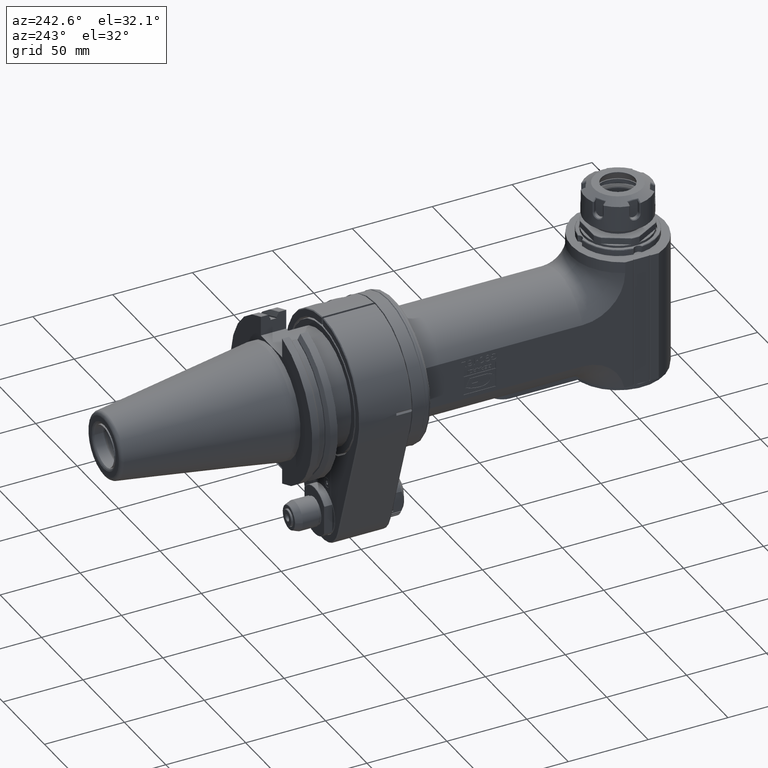
[diagram: clean part render]
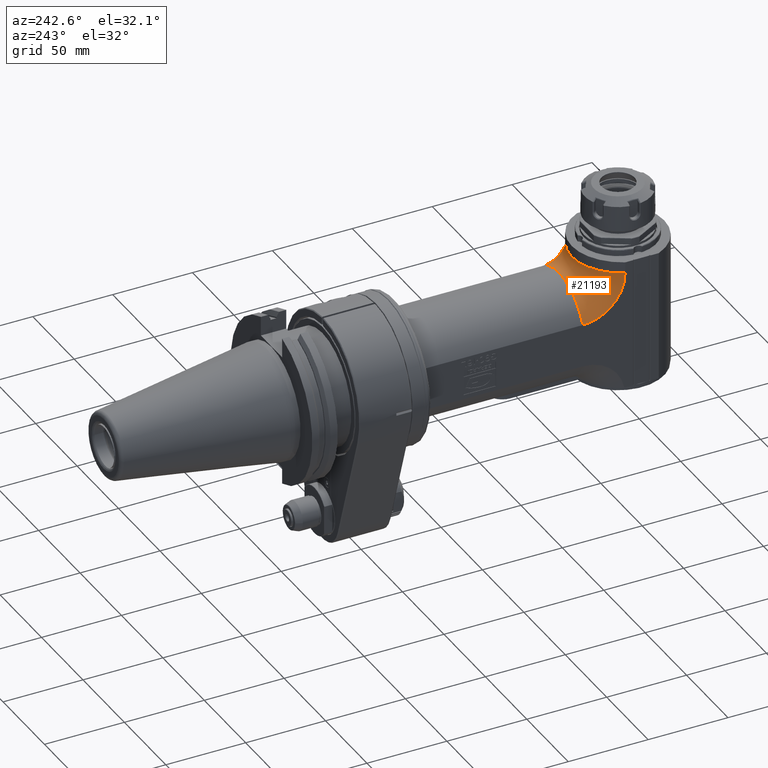
[diagram: same view with one face highlighted and labeled with its STEP entity id]
A machine part, auxiliary view. The second image highlights one B-rep face of the part: STEP entity #21193.
In plain terms, the highlighted toroidal blend (fillet) surface has major radius 40 mm and minor (blend) radius 32 mm.
Its self-contained STEP definition (entity closure, byte-faithful):
#370=TOROIDAL_SURFACE('',#22581,1.5748031496063,1.25984251968504);
#1620=FACE_OUTER_BOUND('',#2873,.T.);
#2873=EDGE_LOOP('',(#15323,#15324,#15325,#15326));
#4119=CIRCLE('',#22329,1.04221459612323);
#4219=CIRCLE('',#22553,1.04221459612323);
#4231=CIRCLE('',#22580,1.25984251968504);
#4232=CIRCLE('',#22582,1.25984251968504);
#9103=VERTEX_POINT('',#30923);
#9104=VERTEX_POINT('',#30925);
#9480=VERTEX_POINT('',#32125);
#9481=VERTEX_POINT('',#32127);
#11229=EDGE_CURVE('',#9104,#9103,#4119,.T.);
#11708=EDGE_CURVE('',#9480,#9481,#4219,.T.);
#11747=EDGE_CURVE('',#9103,#9481,#4231,.T.);
#11748=EDGE_CURVE('',#9104,#9480,#4232,.T.);
#15323=ORIENTED_EDGE('',*,*,#11748,.F.);
#15324=ORIENTED_EDGE('',*,*,#11229,.T.);
#15325=ORIENTED_EDGE('',*,*,#11747,.T.);
#15326=ORIENTED_EDGE('',*,*,#11708,.F.);
#21193=ADVANCED_FACE('',(#1620),#370,.T.);
#22329=AXIS2_PLACEMENT_3D('',#30926,#24299,#24300);
#22553=AXIS2_PLACEMENT_3D('',#32128,#25124,#25125);
#22580=AXIS2_PLACEMENT_3D('',#32205,#25205,#25206);
#22581=AXIS2_PLACEMENT_3D('',#32206,#25207,#25208);
#22582=AXIS2_PLACEMENT_3D('',#32207,#25209,#25210);
#24299=DIRECTION('center_axis',(-1.,0.,0.));
#24300=DIRECTION('ref_axis',(0.,0.,-1.));
#25124=DIRECTION('center_axis',(-1.,0.,0.));
#25125=DIRECTION('ref_axis',(0.,0.,-1.));
#25205=DIRECTION('center_axis',(0.,0.,-1.));
#25206=DIRECTION('ref_axis',(-0.906250000000018,0.422742164327108,0.));
#25207=DIRECTION('center_axis',(-1.,0.,0.));
#25208=DIRECTION('ref_axis',(0.,1.,0.));
#25209=DIRECTION('center_axis',(0.,1.,0.));
#25210=DIRECTION('ref_axis',(-0.906250000000018,0.,0.422742164327108));
#30923=CARTESIAN_POINT('',(-1.14173228346457,-6.55402561974409,1.5748031496063));
#30925=CARTESIAN_POINT('',(-1.14173228346457,-5.51181102362205,0.532588553483071));
#30926=CARTESIAN_POINT('Origin',(-1.14173228346457,-5.51181102362205,1.5748031496063));
#32125=CARTESIAN_POINT('',(1.14173228346457,-5.51181102362205,0.532588553483071));
#32127=CARTESIAN_POINT('',(1.14173228346457,-6.55402561974409,1.5748031496063));
#32128=CARTESIAN_POINT('Origin',(1.14173228346457,-5.51181102362205,1.5748031496063));
#32205=CARTESIAN_POINT('Origin',(0.,-7.08661417322835,1.5748031496063));
#32206=CARTESIAN_POINT('Origin',(0.,-5.51181102362205,1.5748031496063));
#32207=CARTESIAN_POINT('Origin',(0.,-5.51181102362205,0.));